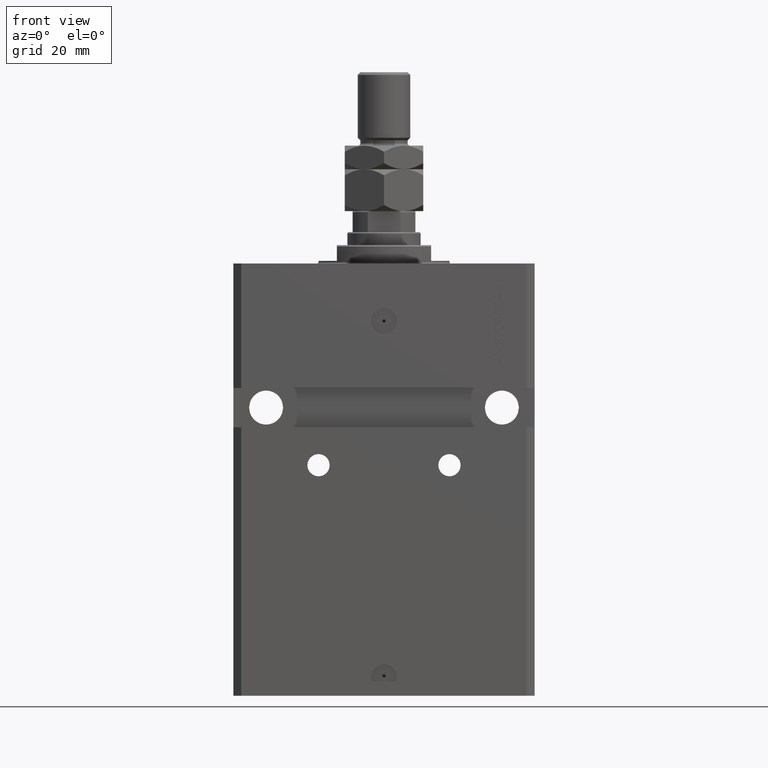
[diagram: clean part render]
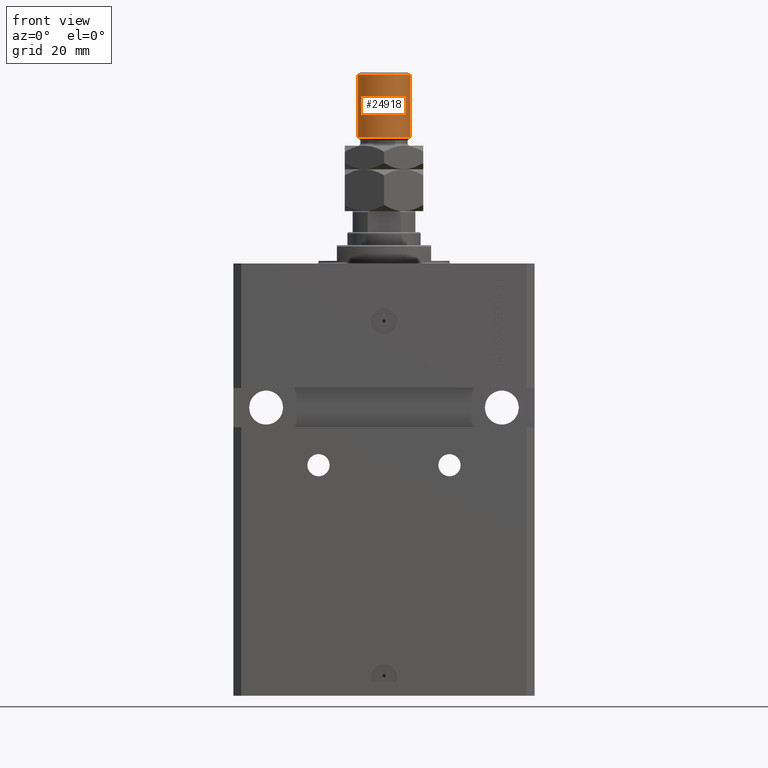
[diagram: same view with one face highlighted and labeled with its STEP entity id]
A machine part, front view. The second image highlights one B-rep face of the part: STEP entity #24918.
In plain terms, the highlighted cylindrical surface (edge-blend (fillet) strip) has radius 10 mm, axis along (-0, -0, -1).
Its self-contained STEP definition (entity closure, byte-faithful):
#28 = CARTESIAN_POINT ( 'NONE',  ( -10.00000000000000000, 0.000000000000000000, 28.00000000000002487 ) ) ;
#1669 = CARTESIAN_POINT ( 'NONE',  ( -10.00000000000000000, 0.000000000000000000, 53.00000000000000711 ) ) ;
#3177 = LINE ( 'NONE', #29616, #21513 ) ;
#5792 = DIRECTION ( 'NONE',  ( -0.000000000000000000, -0.000000000000000000, -1.000000000000000000 ) ) ;
#6895 = EDGE_CURVE ( 'NONE', #7427, #37704, #3177, .T. ) ;
#7427 = VERTEX_POINT ( 'NONE', #20019 ) ;
#7439 = CIRCLE ( 'NONE', #28389, 10.00000000000000000 ) ;
#8582 = CYLINDRICAL_SURFACE ( 'NONE', #15743, 10.00000000000000000 ) ;
#9196 = LINE ( 'NONE', #1669, #31595 ) ;
#11967 = DIRECTION ( 'NONE',  ( -0.000000000000000000, -0.000000000000000000, -1.000000000000000000 ) ) ;
#13601 = VERTEX_POINT ( 'NONE', #30663 ) ;
#13991 = CARTESIAN_POINT ( 'NONE',  ( 0.000000000000000000, 0.000000000000000000, 52.00000000000004974 ) ) ;
#15096 = CARTESIAN_POINT ( 'NONE',  ( 0.000000000000000000, 0.000000000000000000, 53.00000000000000711 ) ) ;
#15461 = EDGE_LOOP ( 'NONE', ( #43746, #31415, #21231, #30714 ) ) ;
#15638 = DIRECTION ( 'NONE',  ( 1.000000000000000000, 0.000000000000000000, 0.000000000000000000 ) ) ;
#15743 = AXIS2_PLACEMENT_3D ( 'NONE', #15096, #11967, #26777 ) ;
#17567 = FACE_OUTER_BOUND ( 'NONE', #15461, .T. ) ;
#19038 = CARTESIAN_POINT ( 'NONE',  ( 0.000000000000000000, 0.000000000000000000, 28.00000000000002487 ) ) ;
#20019 = CARTESIAN_POINT ( 'NONE',  ( 10.00000000000000000, 1.224646799147353059E-15, 52.00000000000004974 ) ) ;
#20833 = CARTESIAN_POINT ( 'NONE',  ( 10.00000000000000000, 1.224646799147353059E-15, 28.00000000000002487 ) ) ;
#21231 = ORIENTED_EDGE ( 'NONE', *, *, #46269, .T. ) ;
#21513 = VECTOR ( 'NONE', #44464, 1000.000000000000000 ) ;
#23417 = DIRECTION ( 'NONE',  ( -0.000000000000000000, -0.000000000000000000, 1.000000000000000000 ) ) ;
#24918 = ADVANCED_FACE ( 'NONE', ( #17567 ), #8582, .T. ) ;
#26777 = DIRECTION ( 'NONE',  ( -1.000000000000000000, 0.000000000000000000, 0.000000000000000000 ) ) ;
#28389 = AXIS2_PLACEMENT_3D ( 'NONE', #19038, #23417, #15638 ) ;
#29616 = CARTESIAN_POINT ( 'NONE',  ( 10.00000000000000000, 1.224646799147353059E-15, 53.00000000000000711 ) ) ;
#30663 = CARTESIAN_POINT ( 'NONE',  ( -10.00000000000000000, 0.000000000000000000, 52.00000000000004974 ) ) ;
#30714 = ORIENTED_EDGE ( 'NONE', *, *, #39052, .T. ) ;
#30730 = AXIS2_PLACEMENT_3D ( 'NONE', #13991, #36369, #43672 ) ;
#30746 = VERTEX_POINT ( 'NONE', #28 ) ;
#31415 = ORIENTED_EDGE ( 'NONE', *, *, #43153, .T. ) ;
#31595 = VECTOR ( 'NONE', #5792, 1000.000000000000000 ) ;
#36369 = DIRECTION ( 'NONE',  ( 0.000000000000000000, 0.000000000000000000, -1.000000000000000000 ) ) ;
#37704 = VERTEX_POINT ( 'NONE', #20833 ) ;
#39052 = EDGE_CURVE ( 'NONE', #30746, #37704, #7439, .T. ) ;
#43153 = EDGE_CURVE ( 'NONE', #7427, #13601, #47797, .T. ) ;
#43672 = DIRECTION ( 'NONE',  ( 1.000000000000000000, 0.000000000000000000, 0.000000000000000000 ) ) ;
#43746 = ORIENTED_EDGE ( 'NONE', *, *, #6895, .F. ) ;
#44464 = DIRECTION ( 'NONE',  ( -0.000000000000000000, -0.000000000000000000, -1.000000000000000000 ) ) ;
#46269 = EDGE_CURVE ( 'NONE', #13601, #30746, #9196, .T. ) ;
#47797 = CIRCLE ( 'NONE', #30730, 10.00000000000000000 ) ;